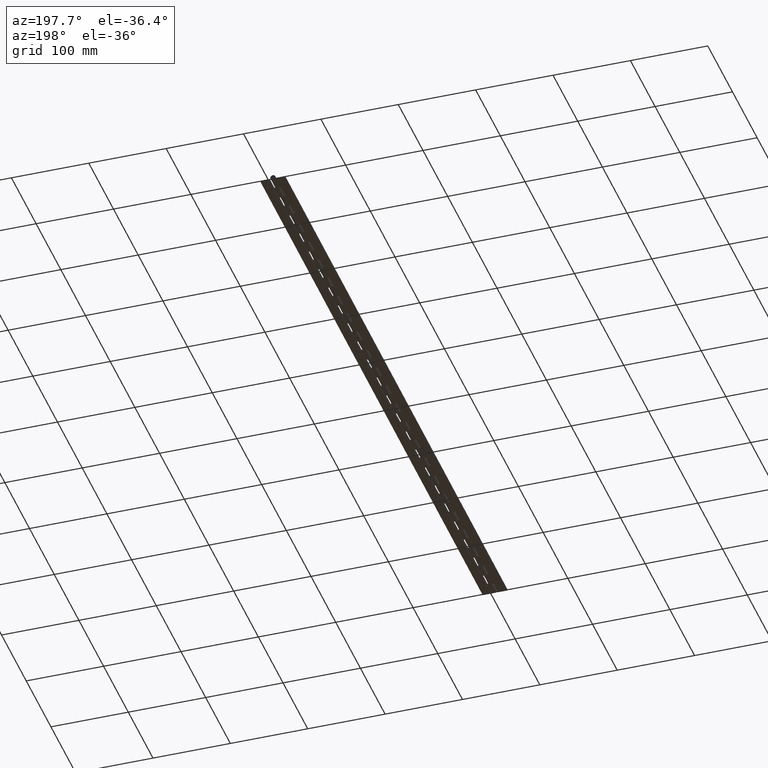
[diagram: clean part render]
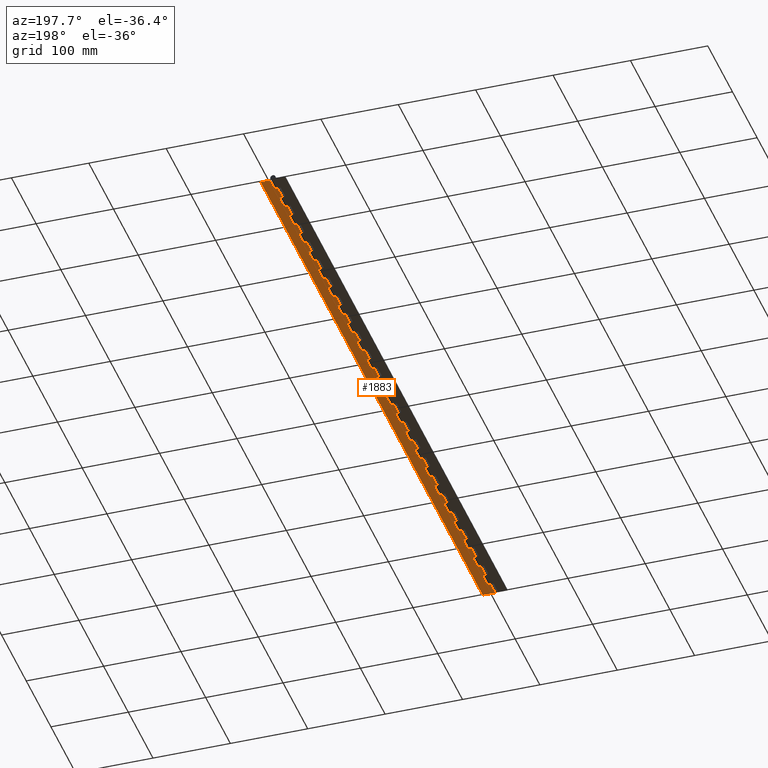
[diagram: same view with one face highlighted and labeled with its STEP entity id]
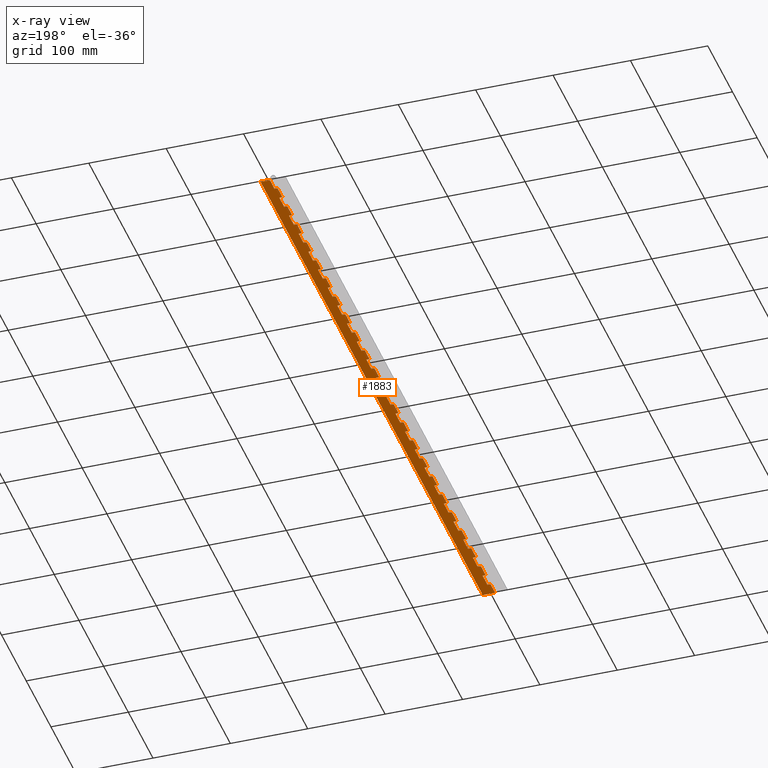
[diagram: x-ray of the same camera — body ghosted, the highlighted face saturated]
A machine part, auxiliary view. The second image highlights one B-rep face of the part: STEP entity #1883.
The next image is the same camera in x-ray: the body ghosted, the highlighted face saturated — about 0% of this face is hidden behind the body in this view.
In plain terms, the highlighted planar face has unit normal (0, 0, 1).
Its self-contained STEP definition (entity closure, byte-faithful):
#3 = VECTOR ( 'NONE', #3542, 1000.000000000000000 ) ;
#19 = CARTESIAN_POINT ( 'NONE',  ( 0.0000000000000000000, 627.2000000000000500, -3.350002187502757700 ) ) ;
#21 = CARTESIAN_POINT ( 'NONE',  ( 16.00000000000000000, 274.4000000000000900, -3.350002187502757700 ) ) ;
#24 = VECTOR ( 'NONE', #305, 1000.000000000000000 ) ;
#37 = VERTEX_POINT ( 'NONE', #8557 ) ;
#44 = LINE ( 'NONE', #910, #7578 ) ;
#53 = EDGE_CURVE ( 'NONE', #4237, #8645, #9070, .T. ) ;
#79 = VERTEX_POINT ( 'NONE', #1160 ) ;
#89 = CARTESIAN_POINT ( 'NONE',  ( -3.350002187502757700, 254.8000000000000400, -3.350002187502757700 ) ) ;
#99 = ORIENTED_EDGE ( 'NONE', *, *, #7746, .T. ) ;
#105 = VECTOR ( 'NONE', #734, 1000.000000000000000 ) ;
#110 = CARTESIAN_POINT ( 'NONE',  ( 0.0000000000000000000, 352.8000000000000700, -3.350002187502757700 ) ) ;
#154 = ORIENTED_EDGE ( 'NONE', *, *, #7662, .F. ) ;
#163 = CARTESIAN_POINT ( 'NONE',  ( 4.000000000000000000, 881.1999999999999300, -3.350002187502757700 ) ) ;
#173 = DIRECTION ( 'NONE',  ( -1.000000000000000000, -0.0000000000000000000, -0.0000000000000000000 ) ) ;
#177 = EDGE_CURVE ( 'NONE', #4525, #4315, #5928, .T. ) ;
#189 = DIRECTION ( 'NONE',  ( 1.000000000000000000, 0.0000000000000000000, -1.084202172485504600E-016 ) ) ;
#190 = ORIENTED_EDGE ( 'NONE', *, *, #8500, .T. ) ;
#198 = CARTESIAN_POINT ( 'NONE',  ( 4.000000000000000000, 803.6000000000001400, -3.350002187502757700 ) ) ;
#227 = DIRECTION ( 'NONE',  ( -0.0000000000000000000, -1.000000000000000000, -0.0000000000000000000 ) ) ;
#289 = VERTEX_POINT ( 'NONE', #8355 ) ;
#291 = DIRECTION ( 'NONE',  ( -1.000000000000000000, -0.0000000000000000000, -0.0000000000000000000 ) ) ;
#295 = CARTESIAN_POINT ( 'NONE',  ( 4.000000000000000000, 450.8000000000000700, -3.350002187502757700 ) ) ;
#296 = EDGE_CURVE ( 'NONE', #3006, #8449, #4965, .T. ) ;
#305 = DIRECTION ( 'NONE',  ( -0.0000000000000000000, -1.000000000000000000, -0.0000000000000000000 ) ) ;
#311 = DIRECTION ( 'NONE',  ( -0.0000000000000000000, -1.000000000000000000, -0.0000000000000000000 ) ) ;
#312 = ORIENTED_EDGE ( 'NONE', *, *, #1822, .F. ) ;
#327 = VECTOR ( 'NONE', #3747, 1000.000000000000000 ) ;
#339 = LINE ( 'NONE', #5263, #105 ) ;
#345 = LINE ( 'NONE', #3813, #6158 ) ;
#347 = CARTESIAN_POINT ( 'NONE',  ( 3.999999999999996400, 39.20000000000001000, -3.350002187502756400 ) ) ;
#383 = VERTEX_POINT ( 'NONE', #4080 ) ;
#387 = CARTESIAN_POINT ( 'NONE',  ( 0.0000000000000000000, 0.0000000000000000000, -3.350002187502757700 ) ) ;
#389 = DIRECTION ( 'NONE',  ( 1.000000000000000000, 0.0000000000000000000, -1.084202172485504600E-016 ) ) ;
#398 = CARTESIAN_POINT ( 'NONE',  ( 4.000000000000000000, 607.6000000000000200, -3.350002187502757700 ) ) ;
#431 = VERTEX_POINT ( 'NONE', #860 ) ;
#457 = CARTESIAN_POINT ( 'NONE',  ( 4.000000000000000000, 529.2000000000000500, -3.350002187502757700 ) ) ;
#468 = CARTESIAN_POINT ( 'NONE',  ( 4.000000000000000000, 411.6000000000000800, -3.350002187502757700 ) ) ;
#495 = CARTESIAN_POINT ( 'NONE',  ( 4.000000000000000000, 646.8000000000000700, -3.350002187502757700 ) ) ;
#504 = ORIENTED_EDGE ( 'NONE', *, *, #1496, .F. ) ;
#520 = ORIENTED_EDGE ( 'NONE', *, *, #5890, .T. ) ;
#537 = CARTESIAN_POINT ( 'NONE',  ( 0.0000000000000000000, 196.0000000000000300, -3.350002187502757700 ) ) ;
#559 = LINE ( 'NONE', #4519, #327 ) ;
#565 = ORIENTED_EDGE ( 'NONE', *, *, #2209, .T. ) ;
#566 = LINE ( 'NONE', #1879, #8332 ) ;
#569 = VECTOR ( 'NONE', #5189, 1000.000000000000000 ) ;
#596 = DIRECTION ( 'NONE',  ( 1.770125995894701000E-016, 1.000000000000000000, -0.0000000000000000000 ) ) ;
#622 = CARTESIAN_POINT ( 'NONE',  ( 4.000000000000000000, 98.00000000000001400, -3.350002187502757700 ) ) ;
#623 = CARTESIAN_POINT ( 'NONE',  ( 0.0000000000000000000, 313.6000000000000200, -3.350002187502757700 ) ) ;
#637 = EDGE_CURVE ( 'NONE', #5449, #1578, #5670, .T. ) ;
#644 = ORIENTED_EDGE ( 'NONE', *, *, #9096, .T. ) ;
#654 = CARTESIAN_POINT ( 'NONE',  ( 4.000000000000000000, 372.4000000000000900, -3.350002187502757700 ) ) ;
#659 = VERTEX_POINT ( 'NONE', #9575 ) ;
#662 = CARTESIAN_POINT ( 'NONE',  ( 16.00000000000000000, 313.5999999999999700, -3.350002187502757700 ) ) ;
#664 = CARTESIAN_POINT ( 'NONE',  ( 4.000000000000000000, 725.2000000000000500, -3.350002187502757700 ) ) ;
#667 = VECTOR ( 'NONE', #966, 1000.000000000000000 ) ;
#676 = LINE ( 'NONE', #654, #6011 ) ;
#694 = CARTESIAN_POINT ( 'NONE',  ( -3.350002187502754100, 0.0000000000000000000, -3.350002187502757700 ) ) ;
#698 = LINE ( 'NONE', #1906, #8467 ) ;
#706 = VECTOR ( 'NONE', #227, 1000.000000000000000 ) ;
#733 = VECTOR ( 'NONE', #7875, 1000.000000000000000 ) ;
#734 = DIRECTION ( 'NONE',  ( -0.0000000000000000000, -1.000000000000000000, -0.0000000000000000000 ) ) ;
#737 = VERTEX_POINT ( 'NONE', #2007 ) ;
#769 = VERTEX_POINT ( 'NONE', #4350 ) ;
#780 = ORIENTED_EDGE ( 'NONE', *, *, #1255, .F. ) ;
#792 = LINE ( 'NONE', #694, #4596 ) ;
#797 = VERTEX_POINT ( 'NONE', #6583 ) ;
#817 = DIRECTION ( 'NONE',  ( 1.000000000000000000, 0.0000000000000000000, -1.084202172485504600E-016 ) ) ;
#843 = CARTESIAN_POINT ( 'NONE',  ( 4.000000000000000000, 294.0000000000000600, -3.350002187502757700 ) ) ;
#860 = CARTESIAN_POINT ( 'NONE',  ( 0.0000000000000000000, 431.2000000000001000, -3.350002187502757700 ) ) ;
#883 = DIRECTION ( 'NONE',  ( 1.000000000000000000, 0.0000000000000000000, 0.0000000000000000000 ) ) ;
#895 = DIRECTION ( 'NONE',  ( -0.0000000000000000000, -1.000000000000000000, -0.0000000000000000000 ) ) ;
#910 = CARTESIAN_POINT ( 'NONE',  ( -3.350002187502757700, 490.0000000000000600, -3.350002187502757700 ) ) ;
#938 = LINE ( 'NONE', #9388, #8470 ) ;
#942 = DIRECTION ( 'NONE',  ( 1.770125995894701000E-016, 1.000000000000000000, -0.0000000000000000000 ) ) ;
#956 = EDGE_CURVE ( 'NONE', #7421, #797, #4966, .T. ) ;
#965 = LINE ( 'NONE', #6234, #2514 ) ;
#966 = DIRECTION ( 'NONE',  ( -1.000000000000000000, -0.0000000000000000000, -0.0000000000000000000 ) ) ;
#973 = LINE ( 'NONE', #3393, #733 ) ;
#976 = ORIENTED_EDGE ( 'NONE', *, *, #4681, .F. ) ;
#981 = CARTESIAN_POINT ( 'NONE',  ( 4.000000000000000000, 176.4000000000000300, -3.350002187502757700 ) ) ;
#986 = DIRECTION ( 'NONE',  ( 1.770125995894701000E-016, 1.000000000000000000, -0.0000000000000000000 ) ) ;
#996 = VERTEX_POINT ( 'NONE', #295 ) ;
#997 = CARTESIAN_POINT ( 'NONE',  ( 3.999999999999996400, 784.0000000000001100, -3.350002187502756400 ) ) ;
#1022 = EDGE_CURVE ( 'NONE', #7966, #383, #4029, .T. ) ;
#1029 = VECTOR ( 'NONE', #9680, 1000.000000000000000 ) ;
#1047 = LINE ( 'NONE', #5024, #6837 ) ;
#1051 = DIRECTION ( 'NONE',  ( 1.770125995894701000E-016, 1.000000000000000000, -0.0000000000000000000 ) ) ;
#1064 = VECTOR ( 'NONE', #291, 1000.000000000000000 ) ;
#1065 = EDGE_CURVE ( 'NONE', #7174, #8025, #9516, .T. ) ;
#1143 = LINE ( 'NONE', #9320, #6702 ) ;
#1160 = CARTESIAN_POINT ( 'NONE',  ( 4.000000000000000000, 646.8000000000000700, -3.350002187502757700 ) ) ;
#1171 = VECTOR ( 'NONE', #1051, 1000.000000000000000 ) ;
#1172 = CARTESIAN_POINT ( 'NONE',  ( 0.0000000000000000000, 392.0000000000000600, -3.350002187502757700 ) ) ;
#1178 = CARTESIAN_POINT ( 'NONE',  ( 4.000000000000000000, 411.6000000000000800, -3.350002187502757700 ) ) ;
#1204 = CARTESIAN_POINT ( 'NONE',  ( 4.000000000000000000, 450.8000000000000700, -3.350002187502757700 ) ) ;
#1207 = DIRECTION ( 'NONE',  ( -0.0000000000000000000, -1.000000000000000000, -0.0000000000000000000 ) ) ;
#1212 = CARTESIAN_POINT ( 'NONE',  ( 16.00000000000000000, 235.1999999999999600, -3.350002187502757700 ) ) ;
#1222 = DIRECTION ( 'NONE',  ( -0.0000000000000000000, -1.000000000000000000, -0.0000000000000000000 ) ) ;
#1224 = DIRECTION ( 'NONE',  ( -0.0000000000000000000, -1.000000000000000000, -0.0000000000000000000 ) ) ;
#1227 = VERTEX_POINT ( 'NONE', #7571 ) ;
#1243 = CARTESIAN_POINT ( 'NONE',  ( 4.000000000000000000, 686.0000000000000000, -3.350002187502757700 ) ) ;
#1252 = DIRECTION ( 'NONE',  ( 1.770125995894701000E-016, 1.000000000000000000, -0.0000000000000000000 ) ) ;
#1255 = EDGE_CURVE ( 'NONE', #5066, #3963, #3913, .T. ) ;
#1278 = VECTOR ( 'NONE', #942, 1000.000000000000000 ) ;
#1284 = LINE ( 'NONE', #1212, #7291 ) ;
#1307 = EDGE_CURVE ( 'NONE', #7729, #659, #3664, .T. ) ;
#1358 = CARTESIAN_POINT ( 'NONE',  ( 4.000000000000000000, 19.60000000000000100, -3.350002187502757700 ) ) ;
#1359 = CARTESIAN_POINT ( 'NONE',  ( 0.0000000000000000000, 862.3999999999999800, -3.350002187502755900 ) ) ;
#1364 = CARTESIAN_POINT ( 'NONE',  ( 0.0000000000000000000, -18.80000000000000100, -3.350002187502755900 ) ) ;
#1373 = LINE ( 'NONE', #8177, #8893 ) ;
#1377 = CARTESIAN_POINT ( 'NONE',  ( 16.00000000000000000, 431.2000000000001000, -3.350002187502757700 ) ) ;
#1383 = CARTESIAN_POINT ( 'NONE',  ( 4.000000000000000000, 764.4000000000000900, -3.350002187502757700 ) ) ;
#1395 = VECTOR ( 'NONE', #3092, 1000.000000000000000 ) ;
#1397 = VECTOR ( 'NONE', #8245, 1000.000000000000000 ) ;
#1419 = VERTEX_POINT ( 'NONE', #2822 ) ;
#1420 = ORIENTED_EDGE ( 'NONE', *, *, #5347, .T. ) ;
#1431 = DIRECTION ( 'NONE',  ( -0.0000000000000000000, -1.000000000000000000, -0.0000000000000000000 ) ) ;
#1436 = ORIENTED_EDGE ( 'NONE', *, *, #3973, .T. ) ;
#1438 = CARTESIAN_POINT ( 'NONE',  ( 0.0000000000000000000, 862.3999999999999800, -3.350002187502755900 ) ) ;
#1455 = CARTESIAN_POINT ( 'NONE',  ( 0.0000000000000000000, 862.3999999999999800, -3.350002187502755900 ) ) ;
#1456 = CARTESIAN_POINT ( 'NONE',  ( 16.00000000000000000, 862.3999999999999800, -3.350002187502757700 ) ) ;
#1490 = ORIENTED_EDGE ( 'NONE', *, *, #9026, .F. ) ;
#1496 = EDGE_CURVE ( 'NONE', #3133, #3378, #3781, .T. ) ;
#1516 = VECTOR ( 'NONE', #9566, 1000.000000000000000 ) ;
#1521 = ORIENTED_EDGE ( 'NONE', *, *, #3401, .F. ) ;
#1543 = EDGE_CURVE ( 'NONE', #7466, #289, #7295, .T. ) ;
#1547 = VECTOR ( 'NONE', #3873, 1000.000000000000000 ) ;
#1548 = DIRECTION ( 'NONE',  ( 1.000000000000000000, 0.0000000000000000000, -1.084202172485504600E-016 ) ) ;
#1558 = VERTEX_POINT ( 'NONE', #4156 ) ;
#1566 = VERTEX_POINT ( 'NONE', #387 ) ;
#1575 = CARTESIAN_POINT ( 'NONE',  ( 0.0000000000000000000, 862.3999999999999800, -3.350002187502755900 ) ) ;
#1578 = VERTEX_POINT ( 'NONE', #347 ) ;
#1592 = EDGE_CURVE ( 'NONE', #9451, #2059, #9046, .T. ) ;
#1609 = CARTESIAN_POINT ( 'NONE',  ( 0.0000000000000000000, 235.2000000000000200, -3.350002187502757700 ) ) ;
#1634 = LINE ( 'NONE', #6874, #9364 ) ;
#1638 = ORIENTED_EDGE ( 'NONE', *, *, #8514, .T. ) ;
#1643 = EDGE_CURVE ( 'NONE', #9040, #8711, #6376, .T. ) ;
#1645 = LINE ( 'NONE', #1575, #7639 ) ;
#1675 = VERTEX_POINT ( 'NONE', #981 ) ;
#1680 = LINE ( 'NONE', #8756, #1900 ) ;
#1689 = VECTOR ( 'NONE', #3040, 1000.000000000000000 ) ;
#1692 = DIRECTION ( 'NONE',  ( 1.000000000000000000, 0.0000000000000000000, -1.084202172485504600E-016 ) ) ;
#1698 = VERTEX_POINT ( 'NONE', #8435 ) ;
#1705 = EDGE_CURVE ( 'NONE', #7807, #2326, #7869, .T. ) ;
#1722 = ORIENTED_EDGE ( 'NONE', *, *, #3202, .T. ) ;
#1724 = CARTESIAN_POINT ( 'NONE',  ( -3.350002187502757700, 176.4000000000000300, -3.350002187502757700 ) ) ;
#1731 = VERTEX_POINT ( 'NONE', #5407 ) ;
#1747 = LINE ( 'NONE', #2253, #1987 ) ;
#1750 = EDGE_CURVE ( 'NONE', #2521, #3223, #3423, .T. ) ;
#1759 = CARTESIAN_POINT ( 'NONE',  ( 0.0000000000000000000, 646.8000000000000700, -3.350002187502757700 ) ) ;
#1773 = DIRECTION ( 'NONE',  ( 1.770125995894701000E-016, 1.000000000000000000, -0.0000000000000000000 ) ) ;
#1786 = ORIENTED_EDGE ( 'NONE', *, *, #4690, .T. ) ;
#1790 = VECTOR ( 'NONE', #5520, 1000.000000000000000 ) ;
#1806 = CARTESIAN_POINT ( 'NONE',  ( 0.0000000000000000000, 862.3999999999999800, -3.350002187502755900 ) ) ;
#1812 = DIRECTION ( 'NONE',  ( -1.000000000000000000, -0.0000000000000000000, -0.0000000000000000000 ) ) ;
#1822 = EDGE_CURVE ( 'NONE', #7729, #2522, #8919, .T. ) ;
#1831 = CARTESIAN_POINT ( 'NONE',  ( -3.350002187502757700, 58.80000000000000400, -3.350002187502757700 ) ) ;
#1845 = ORIENTED_EDGE ( 'NONE', *, *, #9195, .T. ) ;
#1864 = LINE ( 'NONE', #457, #5654 ) ;
#1865 = VERTEX_POINT ( 'NONE', #6720 ) ;
#1873 = VECTOR ( 'NONE', #2442, 1000.000000000000000 ) ;
#1879 = CARTESIAN_POINT ( 'NONE',  ( -6.153854184092820600E-016, -18.80000000000000100, -3.350002187502755900 ) ) ;
#1883 = ADVANCED_FACE ( 'NONE', ( #2237 ), #4725, .F. ) ;
#1886 = CARTESIAN_POINT ( 'NONE',  ( 16.00000000000000000, 548.8000000000000700, -3.350002187502757700 ) ) ;
#1887 = VECTOR ( 'NONE', #9582, 1000.000000000000000 ) ;
#1894 = ORIENTED_EDGE ( 'NONE', *, *, #3138, .F. ) ;
#1900 = VECTOR ( 'NONE', #3521, 1000.000000000000000 ) ;
#1906 = CARTESIAN_POINT ( 'NONE',  ( 16.00000000000000000, 196.0000000000000600, -3.350002187502757700 ) ) ;
#1908 = DIRECTION ( 'NONE',  ( 1.770125995894701000E-016, 1.000000000000000000, -0.0000000000000000000 ) ) ;
#1924 = LINE ( 'NONE', #2546, #3470 ) ;
#1947 = ORIENTED_EDGE ( 'NONE', *, *, #4403, .T. ) ;
#1987 = VECTOR ( 'NONE', #6768, 1000.000000000000000 ) ;
#1988 = EDGE_CURVE ( 'NONE', #769, #2870, #5293, .T. ) ;
#2005 = CARTESIAN_POINT ( 'NONE',  ( 0.0000000000000000000, 529.2000000000000500, -3.350002187502757700 ) ) ;
#2007 = CARTESIAN_POINT ( 'NONE',  ( 0.0000000000000000000, 548.8000000000000700, -3.350002187502757700 ) ) ;
#2031 = VERTEX_POINT ( 'NONE', #2882 ) ;
#2033 = LINE ( 'NONE', #9235, #1790 ) ;
#2035 = EDGE_CURVE ( 'NONE', #2031, #1698, #5823, .T. ) ;
#2051 = VECTOR ( 'NONE', #3907, 1000.000000000000000 ) ;
#2059 = VERTEX_POINT ( 'NONE', #1383 ) ;
#2078 = VERTEX_POINT ( 'NONE', #6693 ) ;
#2080 = CARTESIAN_POINT ( 'NONE',  ( 0.0000000000000000000, 862.3999999999999800, -3.350002187502755900 ) ) ;
#2103 = VECTOR ( 'NONE', #3054, 1000.000000000000000 ) ;
#2112 = VECTOR ( 'NONE', #1222, 1000.000000000000000 ) ;
#2137 = ORIENTED_EDGE ( 'NONE', *, *, #5722, .T. ) ;
#2148 = LINE ( 'NONE', #3471, #5931 ) ;
#2152 = ORIENTED_EDGE ( 'NONE', *, *, #1022, .T. ) ;
#2190 = DIRECTION ( 'NONE',  ( -0.0000000000000000000, -1.000000000000000000, -0.0000000000000000000 ) ) ;
#2206 = CARTESIAN_POINT ( 'NONE',  ( 16.00000000000000000, 352.8000000000001300, -3.350002187502757700 ) ) ;
#2209 = EDGE_CURVE ( 'NONE', #37, #1865, #4552, .T. ) ;
#2218 = CARTESIAN_POINT ( 'NONE',  ( -3.350002187502757700, 725.2000000000000500, -3.350002187502757700 ) ) ;
#2237 = FACE_OUTER_BOUND ( 'NONE', #3194, .T. ) ;
#2241 = EDGE_CURVE ( 'NONE', #9449, #5678, #4067, .T. ) ;
#2246 = CARTESIAN_POINT ( 'NONE',  ( 4.000000000000000000, 881.1999999999999300, -3.350002187502757700 ) ) ;
#2251 = VECTOR ( 'NONE', #7105, 1000.000000000000000 ) ;
#2253 = CARTESIAN_POINT ( 'NONE',  ( -3.350002187502757700, 450.8000000000000700, -3.350002187502757700 ) ) ;
#2254 = VECTOR ( 'NONE', #1224, 1000.000000000000000 ) ;
#2265 = EDGE_CURVE ( 'NONE', #7421, #7689, #5839, .T. ) ;
#2285 = VECTOR ( 'NONE', #9442, 1000.000000000000000 ) ;
#2289 = EDGE_CURVE ( 'NONE', #6411, #3378, #44, .T. ) ;
#2295 = ORIENTED_EDGE ( 'NONE', *, *, #8162, .T. ) ;
#2302 = CARTESIAN_POINT ( 'NONE',  ( 16.00000000000000000, 744.8000000000001800, -3.350002187502757700 ) ) ;
#2326 = VERTEX_POINT ( 'NONE', #9240 ) ;
#2351 = CARTESIAN_POINT ( 'NONE',  ( 16.00000000000000000, 156.8000000000000400, -3.350002187502757700 ) ) ;
#2360 = VECTOR ( 'NONE', #5974, 1000.000000000000000 ) ;
#2365 = VECTOR ( 'NONE', #1773, 1000.000000000000000 ) ;
#2368 = VECTOR ( 'NONE', #7213, 1000.000000000000000 ) ;
#2420 = CARTESIAN_POINT ( 'NONE',  ( 4.000000000000000000, 333.2000000000000500, -3.350002187502757700 ) ) ;
#2428 = ORIENTED_EDGE ( 'NONE', *, *, #637, .T. ) ;
#2442 = DIRECTION ( 'NONE',  ( -0.0000000000000000000, -1.000000000000000000, -0.0000000000000000000 ) ) ;
#2463 = VECTOR ( 'NONE', #2600, 1000.000000000000000 ) ;
#2474 = ORIENTED_EDGE ( 'NONE', *, *, #7078, .T. ) ;
#2485 = VECTOR ( 'NONE', #986, 1000.000000000000000 ) ;
#2486 = DIRECTION ( 'NONE',  ( -1.000000000000000000, -0.0000000000000000000, -0.0000000000000000000 ) ) ;
#2501 = VERTEX_POINT ( 'NONE', #5724 ) ;
#2504 = ORIENTED_EDGE ( 'NONE', *, *, #2241, .T. ) ;
#2514 = VECTOR ( 'NONE', #8426, 1000.000000000000000 ) ;
#2521 = VERTEX_POINT ( 'NONE', #1172 ) ;
#2522 = VERTEX_POINT ( 'NONE', #7208 ) ;
#2545 = ORIENTED_EDGE ( 'NONE', *, *, #3409, .T. ) ;
#2546 = CARTESIAN_POINT ( 'NONE',  ( -3.350002187502757700, 294.0000000000000600, -3.350002187502757700 ) ) ;
#2583 = CARTESIAN_POINT ( 'NONE',  ( 3.999999999999996400, 744.8000000000001800, -3.350002187502756400 ) ) ;
#2586 = CARTESIAN_POINT ( 'NONE',  ( 3.999999999999996400, 313.5999999999999700, -3.350002187502756400 ) ) ;
#2592 = LINE ( 'NONE', #1438, #2360 ) ;
#2600 = DIRECTION ( 'NONE',  ( -0.0000000000000000000, -1.000000000000000000, -0.0000000000000000000 ) ) ;
#2603 = CARTESIAN_POINT ( 'NONE',  ( 4.000000000000000000, 764.4000000000000900, -3.350002187502757700 ) ) ;
#2638 = DIRECTION ( 'NONE',  ( 1.000000000000000000, 0.0000000000000000000, -1.084202172485504600E-016 ) ) ;
#2662 = CARTESIAN_POINT ( 'NONE',  ( 0.0000000000000000000, 588.0000000000001100, -3.350002187502757700 ) ) ;
#2669 = ORIENTED_EDGE ( 'NONE', *, *, #3315, .T. ) ;
#2674 = DIRECTION ( 'NONE',  ( -1.000000000000000000, 0.0000000000000000000, 1.084202172485504400E-016 ) ) ;
#2688 = DIRECTION ( 'NONE',  ( 1.770125995894701000E-016, 1.000000000000000000, -0.0000000000000000000 ) ) ;
#2689 = LINE ( 'NONE', #7840, #2463 ) ;
#2707 = VECTOR ( 'NONE', #2486, 1000.000000000000000 ) ;
#2755 = ORIENTED_EDGE ( 'NONE', *, *, #9130, .T. ) ;
#2771 = ORIENTED_EDGE ( 'NONE', *, *, #3840, .F. ) ;
#2822 = CARTESIAN_POINT ( 'NONE',  ( 0.0000000000000000000, 686.0000000000000000, -3.350002187502757700 ) ) ;
#2870 = VERTEX_POINT ( 'NONE', #622 ) ;
#2882 = CARTESIAN_POINT ( 'NONE',  ( 3.999999999999996400, 0.0000000000000000000, -3.350002187502757700 ) ) ;
#2918 = LINE ( 'NONE', #2218, #4706 ) ;
#2977 = EDGE_CURVE ( 'NONE', #737, #3369, #5473, .T. ) ;
#2992 = ORIENTED_EDGE ( 'NONE', *, *, #956, .F. ) ;
#3006 = VERTEX_POINT ( 'NONE', #5307 ) ;
#3018 = ORIENTED_EDGE ( 'NONE', *, *, #9217, .T. ) ;
#3040 = DIRECTION ( 'NONE',  ( -0.0000000000000000000, -1.000000000000000000, -0.0000000000000000000 ) ) ;
#3054 = DIRECTION ( 'NONE',  ( 1.000000000000000000, 0.0000000000000000000, -1.084202172485504600E-016 ) ) ;
#3088 = DIRECTION ( 'NONE',  ( -1.000000000000000000, -0.0000000000000000000, -0.0000000000000000000 ) ) ;
#3089 = ORIENTED_EDGE ( 'NONE', *, *, #177, .T. ) ;
#3092 = DIRECTION ( 'NONE',  ( 1.000000000000000000, 0.0000000000000000000, -1.084202172485504600E-016 ) ) ;
#3098 = VECTOR ( 'NONE', #1812, 1000.000000000000000 ) ;
#3099 = LINE ( 'NONE', #1886, #4866 ) ;
#3105 = CARTESIAN_POINT ( 'NONE',  ( 0.0000000000000000000, 470.4000000000000300, -3.350002187502757700 ) ) ;
#3112 = CARTESIAN_POINT ( 'NONE',  ( -3.350002187502757700, 842.8000000000000700, -3.350002187502757700 ) ) ;
#3133 = VERTEX_POINT ( 'NONE', #8477 ) ;
#3138 = EDGE_CURVE ( 'NONE', #6294, #8653, #2033, .T. ) ;
#3182 = LINE ( 'NONE', #1806, #4937 ) ;
#3194 = EDGE_LOOP ( 'NONE', ( #3572, #9120, #7551, #1786, #7037, #976, #2755, #5285, #5503, #8792, #2428, #2669, #8950, #8021, #644, #7088, #8821, #780, #4543, #2295, #8901, #8992, #565, #7233, #190, #8479, #1436, #5977, #7692, #1894, #6348, #8031, #3832, #4007, #6783, #4116, #4630, #1490, #6046, #2152, #1722, #9213, #1420, #3870, #9547, #9321, #5544, #2545, #3640, #4077, #6443, #4967, #7909, #6433, #3089, #4145, #6575, #504, #8033, #2474, #3018, #6363, #2137, #5989, #2504, #154, #1947, #3706, #5685, #312, #4063, #9550, #9738, #2771, #99, #6075, #7255, #4031, #8485, #9454, #5230, #7191, #1845, #7572, #3357, #1521, #520, #1638, #8618, #7030, #9517, #8119, #9236, #2992 ) ) ;
#3197 = DIRECTION ( 'NONE',  ( -1.000000000000000000, -0.0000000000000000000, -0.0000000000000000000 ) ) ;
#3202 = EDGE_CURVE ( 'NONE', #383, #2326, #5089, .T. ) ;
#3223 = VERTEX_POINT ( 'NONE', #3344 ) ;
#3267 = CARTESIAN_POINT ( 'NONE',  ( 0.0000000000000000000, 862.3999999999999800, -3.350002187502755900 ) ) ;
#3272 = VERTEX_POINT ( 'NONE', #6364 ) ;
#3310 = VECTOR ( 'NONE', #5668, 1000.000000000000000 ) ;
#3315 = EDGE_CURVE ( 'NONE', #1578, #4181, #8126, .T. ) ;
#3329 = VERTEX_POINT ( 'NONE', #7946 ) ;
#3344 = CARTESIAN_POINT ( 'NONE',  ( 3.999999999999996400, 392.0000000000000600, -3.350002187502756400 ) ) ;
#3356 = EDGE_CURVE ( 'NONE', #4315, #6411, #2148, .T. ) ;
#3357 = ORIENTED_EDGE ( 'NONE', *, *, #4241, .T. ) ;
#3369 = VERTEX_POINT ( 'NONE', #2005 ) ;
#3378 = VERTEX_POINT ( 'NONE', #7264 ) ;
#3393 = CARTESIAN_POINT ( 'NONE',  ( -3.350002187502757700, 646.8000000000000700, -3.350002187502757700 ) ) ;
#3401 = EDGE_CURVE ( 'NONE', #4757, #5512, #1680, .T. ) ;
#3409 = EDGE_CURVE ( 'NONE', #3223, #8946, #5462, .T. ) ;
#3414 = CARTESIAN_POINT ( 'NONE',  ( 4.000000000000000000, 254.8000000000000400, -3.350002187502757700 ) ) ;
#3423 = LINE ( 'NONE', #6888, #1397 ) ;
#3439 = VECTOR ( 'NONE', #895, 1000.000000000000000 ) ;
#3470 = VECTOR ( 'NONE', #3989, 1000.000000000000000 ) ;
#3471 = CARTESIAN_POINT ( 'NONE',  ( 4.000000000000000000, 490.0000000000000600, -3.350002187502757700 ) ) ;
#3475 = EDGE_CURVE ( 'NONE', #659, #79, #4968, .T. ) ;
#3521 = DIRECTION ( 'NONE',  ( -0.0000000000000000000, -1.000000000000000000, -0.0000000000000000000 ) ) ;
#3529 = CARTESIAN_POINT ( 'NONE',  ( -3.350002187502757700, 764.4000000000000900, -3.350002187502757700 ) ) ;
#3542 = DIRECTION ( 'NONE',  ( 1.000000000000000000, 0.0000000000000000000, -1.084202172485504600E-016 ) ) ;
#3554 = VECTOR ( 'NONE', #4700, 1000.000000000000000 ) ;
#3565 = VERTEX_POINT ( 'NONE', #4434 ) ;
#3572 = ORIENTED_EDGE ( 'NONE', *, *, #2265, .T. ) ;
#3630 = DIRECTION ( 'NONE',  ( 1.770125995894701000E-016, 1.000000000000000000, -0.0000000000000000000 ) ) ;
#3640 = ORIENTED_EDGE ( 'NONE', *, *, #6085, .T. ) ;
#3664 = LINE ( 'NONE', #9000, #9393 ) ;
#3673 = DIRECTION ( 'NONE',  ( 1.000000000000000000, 0.0000000000000000000, -1.084202172485504600E-016 ) ) ;
#3676 = LINE ( 'NONE', #8614, #1171 ) ;
#3678 = VERTEX_POINT ( 'NONE', #4572 ) ;
#3706 = ORIENTED_EDGE ( 'NONE', *, *, #7034, .T. ) ;
#3710 = EDGE_CURVE ( 'NONE', #289, #797, #4628, .T. ) ;
#3742 = EDGE_CURVE ( 'NONE', #8025, #3565, #8354, .T. ) ;
#3743 = CARTESIAN_POINT ( 'NONE',  ( 0.0000000000000000000, 862.3999999999999800, -3.350002187502755900 ) ) ;
#3747 = DIRECTION ( 'NONE',  ( -1.000000000000000000, -0.0000000000000000000, -0.0000000000000000000 ) ) ;
#3762 = LINE ( 'NONE', #6605, #1516 ) ;
#3772 = LINE ( 'NONE', #6088, #6263 ) ;
#3781 = LINE ( 'NONE', #8681, #5790 ) ;
#3795 = LINE ( 'NONE', #7607, #1547 ) ;
#3812 = LINE ( 'NONE', #4834, #24 ) ;
#3813 = CARTESIAN_POINT ( 'NONE',  ( 4.000000000000000000, 568.3999999999999800, -3.350002187502757700 ) ) ;
#3822 = VECTOR ( 'NONE', #3630, 1000.000000000000000 ) ;
#3832 = ORIENTED_EDGE ( 'NONE', *, *, #3742, .T. ) ;
#3833 = VECTOR ( 'NONE', #883, 1000.000000000000000 ) ;
#3840 = EDGE_CURVE ( 'NONE', #4404, #5601, #9636, .T. ) ;
#3858 = CARTESIAN_POINT ( 'NONE',  ( 4.000000000000000000, 803.6000000000001400, -3.350002187502757700 ) ) ;
#3870 = ORIENTED_EDGE ( 'NONE', *, *, #7231, .T. ) ;
#3873 = DIRECTION ( 'NONE',  ( -1.000000000000000000, -0.0000000000000000000, -0.0000000000000000000 ) ) ;
#3882 = LINE ( 'NONE', #7587, #8085 ) ;
#3887 = LINE ( 'NONE', #5757, #2112 ) ;
#3907 = DIRECTION ( 'NONE',  ( -1.000000000000000000, -0.0000000000000000000, -0.0000000000000000000 ) ) ;
#3913 = LINE ( 'NONE', #2080, #1887 ) ;
#3924 = VECTOR ( 'NONE', #4935, 1000.000000000000000 ) ;
#3963 = VERTEX_POINT ( 'NONE', #5669 ) ;
#3973 = EDGE_CURVE ( 'NONE', #8998, #2501, #698, .T. ) ;
#3977 = VERTEX_POINT ( 'NONE', #2662 ) ;
#3989 = DIRECTION ( 'NONE',  ( -1.000000000000000000, -0.0000000000000000000, -0.0000000000000000000 ) ) ;
#4007 = ORIENTED_EDGE ( 'NONE', *, *, #7054, .F. ) ;
#4015 = CARTESIAN_POINT ( 'NONE',  ( 4.000000000000000000, 490.0000000000000600, -3.350002187502757700 ) ) ;
#4023 = CARTESIAN_POINT ( 'NONE',  ( 4.000000000000000000, 686.0000000000000000, -3.350002187502757700 ) ) ;
#4029 = LINE ( 'NONE', #2420, #8232 ) ;
#4031 = ORIENTED_EDGE ( 'NONE', *, *, #7740, .F. ) ;
#4063 = ORIENTED_EDGE ( 'NONE', *, *, #1307, .T. ) ;
#4067 = LINE ( 'NONE', #7630, #2051 ) ;
#4077 = ORIENTED_EDGE ( 'NONE', *, *, #8094, .F. ) ;
#4080 = CARTESIAN_POINT ( 'NONE',  ( 4.000000000000000000, 333.2000000000000500, -3.350002187502757700 ) ) ;
#4104 = CARTESIAN_POINT ( 'NONE',  ( 0.0000000000000000000, 568.3999999999999800, -3.350002187502757700 ) ) ;
#4110 = LINE ( 'NONE', #2302, #2103 ) ;
#4116 = ORIENTED_EDGE ( 'NONE', *, *, #8006, .T. ) ;
#4119 = VECTOR ( 'NONE', #4921, 1000.000000000000000 ) ;
#4141 = LINE ( 'NONE', #6808, #7884 ) ;
#4145 = ORIENTED_EDGE ( 'NONE', *, *, #3356, .T. ) ;
#4146 = EDGE_CURVE ( 'NONE', #2870, #3963, #8806, .T. ) ;
#4156 = CARTESIAN_POINT ( 'NONE',  ( 0.0000000000000000000, 725.2000000000000500, -3.350002187502757700 ) ) ;
#4181 = VERTEX_POINT ( 'NONE', #6455 ) ;
#4186 = EDGE_CURVE ( 'NONE', #1698, #3329, #4371, .T. ) ;
#4225 = CARTESIAN_POINT ( 'NONE',  ( 3.999999999999996400, 352.8000000000001300, -3.350002187502756400 ) ) ;
#4237 = VERTEX_POINT ( 'NONE', #7268 ) ;
#4241 = EDGE_CURVE ( 'NONE', #2059, #5512, #6153, .T. ) ;
#4256 = LINE ( 'NONE', #7931, #2254 ) ;
#4301 = VECTOR ( 'NONE', #817, 1000.000000000000000 ) ;
#4312 = EDGE_CURVE ( 'NONE', #8711, #1419, #7175, .T. ) ;
#4315 = VERTEX_POINT ( 'NONE', #6625 ) ;
#4341 = CARTESIAN_POINT ( 'NONE',  ( 4.000000000000000000, 372.4000000000000900, -3.350002187502757700 ) ) ;
#4350 = CARTESIAN_POINT ( 'NONE',  ( 3.999999999999996400, 78.40000000000002000, -3.350002187502756400 ) ) ;
#4355 = DIRECTION ( 'NONE',  ( -1.000000000000000000, -0.0000000000000000000, -0.0000000000000000000 ) ) ;
#4371 = LINE ( 'NONE', #8654, #2368 ) ;
#4382 = VECTOR ( 'NONE', #5410, 1000.000000000000000 ) ;
#4403 = EDGE_CURVE ( 'NONE', #3977, #6559, #6475, .T. ) ;
#4404 = VERTEX_POINT ( 'NONE', #5981 ) ;
#4411 = VECTOR ( 'NONE', #9709, 1000.000000000000000 ) ;
#4434 = CARTESIAN_POINT ( 'NONE',  ( 0.0000000000000000000, 254.8000000000000400, -3.350002187502757700 ) ) ;
#4472 = EDGE_CURVE ( 'NONE', #9671, #7448, #3772, .T. ) ;
#4519 = CARTESIAN_POINT ( 'NONE',  ( -3.350002187502757700, 607.6000000000000200, -3.350002187502757700 ) ) ;
#4525 = VERTEX_POINT ( 'NONE', #3105 ) ;
#4543 = ORIENTED_EDGE ( 'NONE', *, *, #5554, .T. ) ;
#4548 = CARTESIAN_POINT ( 'NONE',  ( 3.999999999999996400, 509.6000000000000800, -3.350002187502756400 ) ) ;
#4549 = VERTEX_POINT ( 'NONE', #7619 ) ;
#4552 = LINE ( 'NONE', #2351, #4301 ) ;
#4572 = CARTESIAN_POINT ( 'NONE',  ( 0.0000000000000000000, 372.4000000000000900, -3.350002187502757700 ) ) ;
#4582 = CARTESIAN_POINT ( 'NONE',  ( 16.00000000000000000, 666.4000000000000900, -3.350002187502757700 ) ) ;
#4596 = VECTOR ( 'NONE', #5233, 1000.000000000000000 ) ;
#4628 = LINE ( 'NONE', #3112, #4855 ) ;
#4630 = ORIENTED_EDGE ( 'NONE', *, *, #5011, .T. ) ;
#4655 = VECTOR ( 'NONE', #5290, 1000.000000000000000 ) ;
#4681 = EDGE_CURVE ( 'NONE', #1566, #9080, #3182, .T. ) ;
#4687 = CARTESIAN_POINT ( 'NONE',  ( 0.0000000000000000000, 764.4000000000000900, -3.350002187502757700 ) ) ;
#4690 = EDGE_CURVE ( 'NONE', #5360, #6933, #1143, .T. ) ;
#4700 = DIRECTION ( 'NONE',  ( 1.770125995894701000E-016, 1.000000000000000000, -0.0000000000000000000 ) ) ;
#4702 = CARTESIAN_POINT ( 'NONE',  ( 0.0000000000000000000, 58.80000000000000400, -3.350002187502757700 ) ) ;
#4706 = VECTOR ( 'NONE', #6727, 1000.000000000000000 ) ;
#4719 = EDGE_CURVE ( 'NONE', #2521, #3678, #2689, .T. ) ;
#4724 = CARTESIAN_POINT ( 'NONE',  ( 16.00000000000000000, 509.6000000000000800, -3.350002187502757700 ) ) ;
#4725 = PLANE ( 'NONE',  #9251 ) ;
#4757 = VERTEX_POINT ( 'NONE', #5633 ) ;
#4779 = VERTEX_POINT ( 'NONE', #2246 ) ;
#4797 = CARTESIAN_POINT ( 'NONE',  ( -3.350002187502757700, 333.2000000000000500, -3.350002187502757700 ) ) ;
#4834 = CARTESIAN_POINT ( 'NONE',  ( 0.0000000000000000000, 862.3999999999999800, -3.350002187502755900 ) ) ;
#4847 = DIRECTION ( 'NONE',  ( 1.770125995894701000E-016, 1.000000000000000000, -0.0000000000000000000 ) ) ;
#4855 = VECTOR ( 'NONE', #6852, 1000.000000000000000 ) ;
#4865 = VECTOR ( 'NONE', #1908, 1000.000000000000000 ) ;
#4866 = VECTOR ( 'NONE', #4903, 1000.000000000000000 ) ;
#4889 = CARTESIAN_POINT ( 'NONE',  ( 0.0000000000000000000, 862.3999999999999800, -3.350002187502755900 ) ) ;
#4890 = VERTEX_POINT ( 'NONE', #843 ) ;
#4903 = DIRECTION ( 'NONE',  ( 1.000000000000000000, 0.0000000000000000000, -1.084202172485504600E-016 ) ) ;
#4909 = CARTESIAN_POINT ( 'NONE',  ( 4.000000000000000000, 842.8000000000000700, -3.350002187502757700 ) ) ;
#4914 = EDGE_CURVE ( 'NONE', #7689, #4779, #8550, .T. ) ;
#4921 = DIRECTION ( 'NONE',  ( 1.770125995894701000E-016, 1.000000000000000000, -0.0000000000000000000 ) ) ;
#4931 = EDGE_CURVE ( 'NONE', #3133, #7320, #8324, .T. ) ;
#4935 = DIRECTION ( 'NONE',  ( 1.000000000000000000, 0.0000000000000000000, -1.084202172485504600E-016 ) ) ;
#4937 = VECTOR ( 'NONE', #5580, 1000.000000000000000 ) ;
#4953 = LINE ( 'NONE', #1724, #2707 ) ;
#4954 = CARTESIAN_POINT ( 'NONE',  ( 0.0000000000000000000, 744.8000000000001800, -3.350002187502757700 ) ) ;
#4965 = LINE ( 'NONE', #3743, #6733 ) ;
#4966 = LINE ( 'NONE', #4889, #706 ) ;
#4967 = ORIENTED_EDGE ( 'NONE', *, *, #5147, .T. ) ;
#4968 = LINE ( 'NONE', #495, #6739 ) ;
#4982 = LINE ( 'NONE', #6207, #6751 ) ;
#5011 = EDGE_CURVE ( 'NONE', #4890, #6660, #1924, .T. ) ;
#5015 = DIRECTION ( 'NONE',  ( -1.000000000000000000, -0.0000000000000000000, -0.0000000000000000000 ) ) ;
#5024 = CARTESIAN_POINT ( 'NONE',  ( 4.000000000000000000, 215.6000000000000500, -3.350002187502757700 ) ) ;
#5027 = VERTEX_POINT ( 'NONE', #7073 ) ;
#5050 = LINE ( 'NONE', #5934, #1029 ) ;
#5066 = VERTEX_POINT ( 'NONE', #8590 ) ;
#5083 = CARTESIAN_POINT ( 'NONE',  ( 4.000000000000000000, 137.2000000000000200, -3.350002187502757700 ) ) ;
#5089 = LINE ( 'NONE', #4797, #3098 ) ;
#5108 = EDGE_CURVE ( 'NONE', #79, #5601, #973, .T. ) ;
#5110 = CARTESIAN_POINT ( 'NONE',  ( -3.350002187502757700, 686.0000000000000000, -3.350002187502757700 ) ) ;
#5121 = CARTESIAN_POINT ( 'NONE',  ( 4.000000000000000000, 176.4000000000000300, -3.350002187502757700 ) ) ;
#5147 = EDGE_CURVE ( 'NONE', #3272, #996, #6996, .T. ) ;
#5174 = DIRECTION ( 'NONE',  ( 1.770125995894701000E-016, 1.000000000000000000, -0.0000000000000000000 ) ) ;
#5180 = VECTOR ( 'NONE', #4355, 1000.000000000000000 ) ;
#5189 = DIRECTION ( 'NONE',  ( 1.000000000000000000, 0.0000000000000000000, -1.084202172485504600E-016 ) ) ;
#5206 = VECTOR ( 'NONE', #6641, 1000.000000000000000 ) ;
#5207 = DIRECTION ( 'NONE',  ( 1.000000000000000000, 0.0000000000000000000, -1.084202172485504600E-016 ) ) ;
#5230 = ORIENTED_EDGE ( 'NONE', *, *, #9734, .T. ) ;
#5233 = DIRECTION ( 'NONE',  ( 1.000000000000000000, 0.0000000000000000000, 0.0000000000000000000 ) ) ;
#5252 = VERTEX_POINT ( 'NONE', #4341 ) ;
#5263 = CARTESIAN_POINT ( 'NONE',  ( 0.0000000000000000000, 862.3999999999999800, -3.350002187502755900 ) ) ;
#5277 = CARTESIAN_POINT ( 'NONE',  ( 3.999999999999996400, 274.4000000000000900, -3.350002187502756400 ) ) ;
#5285 = ORIENTED_EDGE ( 'NONE', *, *, #2035, .T. ) ;
#5290 = DIRECTION ( 'NONE',  ( 1.000000000000000000, 0.0000000000000000000, -1.084202172485504600E-016 ) ) ;
#5293 = LINE ( 'NONE', #6094, #1278 ) ;
#5307 = CARTESIAN_POINT ( 'NONE',  ( 0.0000000000000000000, 78.40000000000000600, -3.350002187502757700 ) ) ;
#5327 = VERTEX_POINT ( 'NONE', #664 ) ;
#5347 = EDGE_CURVE ( 'NONE', #7807, #8091, #6638, .T. ) ;
#5360 = VERTEX_POINT ( 'NONE', #5998 ) ;
#5390 = EDGE_CURVE ( 'NONE', #8527, #8314, #7907, .T. ) ;
#5401 = LINE ( 'NONE', #1377, #9137 ) ;
#5407 = CARTESIAN_POINT ( 'NONE',  ( 4.000000000000000000, 215.6000000000000500, -3.350002187502757700 ) ) ;
#5410 = DIRECTION ( 'NONE',  ( -1.000000000000000000, -0.0000000000000000000, -0.0000000000000000000 ) ) ;
#5422 = LINE ( 'NONE', #6541, #7398 ) ;
#5438 = CARTESIAN_POINT ( 'NONE',  ( 0.0000000000000000000, 862.3999999999999800, -3.350002187502755900 ) ) ;
#5448 = DIRECTION ( 'NONE',  ( -0.0000000000000000000, 1.000000000000000000, -0.0000000000000000000 ) ) ;
#5449 = VERTEX_POINT ( 'NONE', #6839 ) ;
#5462 = LINE ( 'NONE', #1178, #7434 ) ;
#5463 = VECTOR ( 'NONE', #596, 1000.000000000000000 ) ;
#5469 = VERTEX_POINT ( 'NONE', #3858 ) ;
#5473 = LINE ( 'NONE', #7533, #1689 ) ;
#5503 = ORIENTED_EDGE ( 'NONE', *, *, #4186, .T. ) ;
#5512 = VERTEX_POINT ( 'NONE', #4687 ) ;
#5520 = DIRECTION ( 'NONE',  ( -0.0000000000000000000, -1.000000000000000000, -0.0000000000000000000 ) ) ;
#5526 = EDGE_CURVE ( 'NONE', #5469, #4549, #4982, .T. ) ;
#5544 = ORIENTED_EDGE ( 'NONE', *, *, #1750, .T. ) ;
#5554 = EDGE_CURVE ( 'NONE', #5066, #7954, #965, .T. ) ;
#5580 = DIRECTION ( 'NONE',  ( -0.0000000000000000000, -1.000000000000000000, -0.0000000000000000000 ) ) ;
#5601 = VERTEX_POINT ( 'NONE', #1759 ) ;
#5606 = VERTEX_POINT ( 'NONE', #997 ) ;
#5632 = EDGE_CURVE ( 'NONE', #5449, #3329, #3812, .T. ) ;
#5633 = CARTESIAN_POINT ( 'NONE',  ( 0.0000000000000000000, 784.0000000000001100, -3.350002187502757700 ) ) ;
#5654 = VECTOR ( 'NONE', #7247, 1000.000000000000000 ) ;
#5664 = VECTOR ( 'NONE', #5015, 1000.000000000000000 ) ;
#5668 = DIRECTION ( 'NONE',  ( 1.770125995894701000E-016, 1.000000000000000000, -0.0000000000000000000 ) ) ;
#5670 = LINE ( 'NONE', #6118, #7416 ) ;
#5669 = CARTESIAN_POINT ( 'NONE',  ( 0.0000000000000000000, 98.00000000000001400, -3.350002187502757700 ) ) ;
#5676 = VECTOR ( 'NONE', #6279, 1000.000000000000000 ) ;
#5678 = VERTEX_POINT ( 'NONE', #4104 ) ;
#5685 = ORIENTED_EDGE ( 'NONE', *, *, #9157, .T. ) ;
#5693 = DIRECTION ( 'NONE',  ( 1.000000000000000000, 0.0000000000000000000, -1.084202172485504400E-016 ) ) ;
#5722 = EDGE_CURVE ( 'NONE', #737, #5027, #3099, .T. ) ;
#5724 = CARTESIAN_POINT ( 'NONE',  ( 3.999999999999996400, 196.0000000000000600, -3.350002187502756400 ) ) ;
#5751 = DIRECTION ( 'NONE',  ( 1.000000000000000000, 0.0000000000000000000, -1.084202172485504600E-016 ) ) ;
#5757 = CARTESIAN_POINT ( 'NONE',  ( 0.0000000000000000000, 862.3999999999999800, -3.350002187502755900 ) ) ;
#5790 = VECTOR ( 'NONE', #1207, 1000.000000000000000 ) ;
#5823 = LINE ( 'NONE', #1358, #3822 ) ;
#5839 = LINE ( 'NONE', #6198, #3833 ) ;
#5877 = EDGE_CURVE ( 'NONE', #1865, #1675, #7435, .T. ) ;
#5890 = EDGE_CURVE ( 'NONE', #4757, #5606, #7197, .T. ) ;
#5913 = EDGE_CURVE ( 'NONE', #9171, #4549, #8953, .T. ) ;
#5928 = LINE ( 'NONE', #9574, #3924 ) ;
#5931 = VECTOR ( 'NONE', #2688, 1000.000000000000000 ) ;
#5934 = CARTESIAN_POINT ( 'NONE',  ( 16.00000000000000000, 78.40000000000002000, -3.350002187502757700 ) ) ;
#5974 = DIRECTION ( 'NONE',  ( -0.0000000000000000000, -1.000000000000000000, -0.0000000000000000000 ) ) ;
#5977 = ORIENTED_EDGE ( 'NONE', *, *, #6613, .T. ) ;
#5981 = CARTESIAN_POINT ( 'NONE',  ( 0.0000000000000000000, 666.4000000000000900, -3.350002187502757700 ) ) ;
#5989 = ORIENTED_EDGE ( 'NONE', *, *, #8327, .T. ) ;
#5998 = CARTESIAN_POINT ( 'NONE',  ( 16.00000000000000000, 881.1999999999999300, -3.350002187502757700 ) ) ;
#6011 = VECTOR ( 'NONE', #5174, 1000.000000000000000 ) ;
#6038 = LINE ( 'NONE', #1831, #2251 ) ;
#6041 = LINE ( 'NONE', #8770, #3 ) ;
#6046 = ORIENTED_EDGE ( 'NONE', *, *, #7647, .T. ) ;
#6075 = ORIENTED_EDGE ( 'NONE', *, *, #1643, .T. ) ;
#6085 = EDGE_CURVE ( 'NONE', #8946, #8988, #3795, .T. ) ;
#6088 = CARTESIAN_POINT ( 'NONE',  ( 16.00000000000000000, 705.6000000000001400, -3.350002187502757700 ) ) ;
#6094 = CARTESIAN_POINT ( 'NONE',  ( 4.000000000000000000, 98.00000000000001400, -3.350002187502757700 ) ) ;
#6118 = CARTESIAN_POINT ( 'NONE',  ( 16.00000000000000000, 39.20000000000001000, -3.350002187502757700 ) ) ;
#6129 = DIRECTION ( 'NONE',  ( -1.000000000000000000, -0.0000000000000000000, -0.0000000000000000000 ) ) ;
#6153 = LINE ( 'NONE', #3529, #5664 ) ;
#6158 = VECTOR ( 'NONE', #7540, 1000.000000000000000 ) ;
#6198 = CARTESIAN_POINT ( 'NONE',  ( -3.350002187502755900, 862.4000000000000900, -3.350002187502757700 ) ) ;
#6207 = CARTESIAN_POINT ( 'NONE',  ( -3.350002187502757700, 803.6000000000001400, -3.350002187502757700 ) ) ;
#6222 = CARTESIAN_POINT ( 'NONE',  ( 4.000000000000000000, 254.8000000000000400, -3.350002187502757700 ) ) ;
#6234 = CARTESIAN_POINT ( 'NONE',  ( 16.00000000000000000, 117.6000000000000400, -3.350002187502757700 ) ) ;
#6242 = DIRECTION ( 'NONE',  ( 1.084202172485504600E-016, -0.0000000000000000000, 1.000000000000000000 ) ) ;
#6247 = EDGE_CURVE ( 'NONE', #37, #8645, #4141, .T. ) ;
#6258 = CARTESIAN_POINT ( 'NONE',  ( -3.350002187502757700, 372.4000000000000900, -3.350002187502757700 ) ) ;
#6263 = VECTOR ( 'NONE', #1548, 1000.000000000000000 ) ;
#6279 = DIRECTION ( 'NONE',  ( -0.0000000000000000000, -1.000000000000000000, -0.0000000000000000000 ) ) ;
#6294 = VERTEX_POINT ( 'NONE', #1609 ) ;
#6296 = VERTEX_POINT ( 'NONE', #6881 ) ;
#6331 = EDGE_CURVE ( 'NONE', #4525, #2078, #7424, .T. ) ;
#6348 = ORIENTED_EDGE ( 'NONE', *, *, #8667, .T. ) ;
#6363 = ORIENTED_EDGE ( 'NONE', *, *, #2977, .F. ) ;
#6364 = CARTESIAN_POINT ( 'NONE',  ( 3.999999999999996400, 431.2000000000001000, -3.350002187502756400 ) ) ;
#6376 = LINE ( 'NONE', #4023, #2365 ) ;
#6411 = VERTEX_POINT ( 'NONE', #4015 ) ;
#6433 = ORIENTED_EDGE ( 'NONE', *, *, #6331, .F. ) ;
#6443 = ORIENTED_EDGE ( 'NONE', *, *, #9695, .T. ) ;
#6450 = CARTESIAN_POINT ( 'NONE',  ( 4.000000000000000000, 58.80000000000000400, -3.350002187502757700 ) ) ;
#6455 = CARTESIAN_POINT ( 'NONE',  ( 4.000000000000000000, 58.80000000000000400, -3.350002187502757700 ) ) ;
#6457 = EDGE_CURVE ( 'NONE', #4181, #8449, #6038, .T. ) ;
#6458 = DIRECTION ( 'NONE',  ( 1.770125995894701000E-016, 1.000000000000000000, -0.0000000000000000000 ) ) ;
#6475 = LINE ( 'NONE', #8168, #8457 ) ;
#6478 = LINE ( 'NONE', #198, #2485 ) ;
#6541 = CARTESIAN_POINT ( 'NONE',  ( 4.000000000000000000, 725.2000000000000500, -3.350002187502757700 ) ) ;
#6559 = VERTEX_POINT ( 'NONE', #7189 ) ;
#6575 = ORIENTED_EDGE ( 'NONE', *, *, #2289, .T. ) ;
#6581 = VECTOR ( 'NONE', #189, 1000.000000000000000 ) ;
#6583 = CARTESIAN_POINT ( 'NONE',  ( 0.0000000000000000000, 842.8000000000000700, -3.350002187502757700 ) ) ;
#6591 = VERTEX_POINT ( 'NONE', #7254 ) ;
#6605 = CARTESIAN_POINT ( 'NONE',  ( 0.0000000000000000000, 862.3999999999999800, -3.350002187502755900 ) ) ;
#6613 = EDGE_CURVE ( 'NONE', #2501, #1731, #1047, .T. ) ;
#6625 = CARTESIAN_POINT ( 'NONE',  ( 3.999999999999996400, 470.4000000000000300, -3.350002187502756400 ) ) ;
#6638 = LINE ( 'NONE', #2206, #4411 ) ;
#6641 = DIRECTION ( 'NONE',  ( 1.000000000000000000, 0.0000000000000000000, -1.084202172485504600E-016 ) ) ;
#6660 = VERTEX_POINT ( 'NONE', #8062 ) ;
#6693 = CARTESIAN_POINT ( 'NONE',  ( 0.0000000000000000000, 450.8000000000000700, -3.350002187502757700 ) ) ;
#6702 = VECTOR ( 'NONE', #311, 1000.000000000000000 ) ;
#6711 = VECTOR ( 'NONE', #8933, 1000.000000000000000 ) ;
#6720 = CARTESIAN_POINT ( 'NONE',  ( 3.999999999999996400, 156.8000000000000400, -3.350002187502756400 ) ) ;
#6727 = DIRECTION ( 'NONE',  ( -1.000000000000000000, -0.0000000000000000000, -0.0000000000000000000 ) ) ;
#6733 = VECTOR ( 'NONE', #1431, 1000.000000000000000 ) ;
#6739 = VECTOR ( 'NONE', #7271, 1000.000000000000000 ) ;
#6751 = VECTOR ( 'NONE', #3197, 1000.000000000000000 ) ;
#6768 = DIRECTION ( 'NONE',  ( -1.000000000000000000, -0.0000000000000000000, -0.0000000000000000000 ) ) ;
#6779 = CARTESIAN_POINT ( 'NONE',  ( 0.0000000000000000000, 823.2000000000001600, -3.350002187502757700 ) ) ;
#6783 = ORIENTED_EDGE ( 'NONE', *, *, #5390, .T. ) ;
#6808 = CARTESIAN_POINT ( 'NONE',  ( 0.0000000000000000000, 862.3999999999999800, -3.350002187502755900 ) ) ;
#6814 = VECTOR ( 'NONE', #5448, 1000.000000000000000 ) ;
#6833 = VECTOR ( 'NONE', #4847, 1000.000000000000000 ) ;
#6834 = DIRECTION ( 'NONE',  ( -0.0000000000000000000, -1.000000000000000000, -0.0000000000000000000 ) ) ;
#6837 = VECTOR ( 'NONE', #9492, 1000.000000000000000 ) ;
#6839 = CARTESIAN_POINT ( 'NONE',  ( 0.0000000000000000000, 39.20000000000000300, -3.350002187502757700 ) ) ;
#6852 = DIRECTION ( 'NONE',  ( -1.000000000000000000, -0.0000000000000000000, -0.0000000000000000000 ) ) ;
#6874 = CARTESIAN_POINT ( 'NONE',  ( -3.350002187502757700, 215.6000000000000500, -3.350002187502757700 ) ) ;
#6881 = CARTESIAN_POINT ( 'NONE',  ( 4.000000000000000000, 529.2000000000000500, -3.350002187502757700 ) ) ;
#6888 = CARTESIAN_POINT ( 'NONE',  ( 16.00000000000000000, 392.0000000000000600, -3.350002187502757700 ) ) ;
#6933 = VERTEX_POINT ( 'NONE', #9174 ) ;
#6973 = VECTOR ( 'NONE', #9620, 1000.000000000000000 ) ;
#6996 = LINE ( 'NONE', #1204, #2285 ) ;
#7011 = EDGE_CURVE ( 'NONE', #9080, #6933, #566, .T. ) ;
#7021 = CARTESIAN_POINT ( 'NONE',  ( 0.0000000000000000000, 274.4000000000000300, -3.350002187502757700 ) ) ;
#7030 = ORIENTED_EDGE ( 'NONE', *, *, #5913, .F. ) ;
#7034 = EDGE_CURVE ( 'NONE', #6559, #6591, #7062, .T. ) ;
#7037 = ORIENTED_EDGE ( 'NONE', *, *, #7011, .F. ) ;
#7054 = EDGE_CURVE ( 'NONE', #8527, #3565, #3887, .T. ) ;
#7059 = CARTESIAN_POINT ( 'NONE',  ( 3.999999999999996400, 117.6000000000000400, -3.350002187502756400 ) ) ;
#7062 = LINE ( 'NONE', #398, #4119 ) ;
#7073 = CARTESIAN_POINT ( 'NONE',  ( 3.999999999999996400, 548.8000000000000700, -3.350002187502756400 ) ) ;
#7078 = EDGE_CURVE ( 'NONE', #7320, #6296, #1864, .T. ) ;
#7088 = ORIENTED_EDGE ( 'NONE', *, *, #1988, .T. ) ;
#7097 = CARTESIAN_POINT ( 'NONE',  ( 4.000000000000000000, 568.3999999999999800, -3.350002187502757700 ) ) ;
#7105 = DIRECTION ( 'NONE',  ( -1.000000000000000000, -0.0000000000000000000, -0.0000000000000000000 ) ) ;
#7118 = EDGE_CURVE ( 'NONE', #7448, #5327, #5422, .T. ) ;
#7121 = DIRECTION ( 'NONE',  ( -1.000000000000000000, -0.0000000000000000000, -0.0000000000000000000 ) ) ;
#7174 = VERTEX_POINT ( 'NONE', #9588 ) ;
#7175 = LINE ( 'NONE', #5110, #5180 ) ;
#7189 = CARTESIAN_POINT ( 'NONE',  ( 3.999999999999996400, 588.0000000000001100, -3.350002187502756400 ) ) ;
#7191 = ORIENTED_EDGE ( 'NONE', *, *, #9718, .F. ) ;
#7197 = LINE ( 'NONE', #8845, #5206 ) ;
#7208 = CARTESIAN_POINT ( 'NONE',  ( 0.0000000000000000000, 607.6000000000000200, -3.350002187502757700 ) ) ;
#7213 = DIRECTION ( 'NONE',  ( -1.000000000000000000, -0.0000000000000000000, -0.0000000000000000000 ) ) ;
#7231 = EDGE_CURVE ( 'NONE', #8091, #5252, #676, .T. ) ;
#7233 = ORIENTED_EDGE ( 'NONE', *, *, #5877, .T. ) ;
#7247 = DIRECTION ( 'NONE',  ( 1.770125995894701000E-016, 1.000000000000000000, -0.0000000000000000000 ) ) ;
#7254 = CARTESIAN_POINT ( 'NONE',  ( 4.000000000000000000, 607.6000000000000200, -3.350002187502757700 ) ) ;
#7255 = ORIENTED_EDGE ( 'NONE', *, *, #4312, .T. ) ;
#7264 = CARTESIAN_POINT ( 'NONE',  ( 0.0000000000000000000, 490.0000000000000600, -3.350002187502757700 ) ) ;
#7268 = CARTESIAN_POINT ( 'NONE',  ( 4.000000000000000000, 137.2000000000000200, -3.350002187502757700 ) ) ;
#7271 = DIRECTION ( 'NONE',  ( 1.770125995894701000E-016, 1.000000000000000000, -0.0000000000000000000 ) ) ;
#7291 = VECTOR ( 'NONE', #5751, 1000.000000000000000 ) ;
#7292 = EDGE_CURVE ( 'NONE', #996, #2078, #1747, .T. ) ;
#7295 = LINE ( 'NONE', #4909, #3310 ) ;
#7320 = VERTEX_POINT ( 'NONE', #4548 ) ;
#7398 = VECTOR ( 'NONE', #1252, 1000.000000000000000 ) ;
#7405 = DIRECTION ( 'NONE',  ( 1.000000000000000000, 0.0000000000000000000, -1.084202172485504600E-016 ) ) ;
#7416 = VECTOR ( 'NONE', #3673, 1000.000000000000000 ) ;
#7421 = VERTEX_POINT ( 'NONE', #8388 ) ;
#7424 = LINE ( 'NONE', #5438, #3439 ) ;
#7434 = VECTOR ( 'NONE', #6458, 1000.000000000000000 ) ;
#7435 = LINE ( 'NONE', #5121, #5463 ) ;
#7448 = VERTEX_POINT ( 'NONE', #8415 ) ;
#7461 = CARTESIAN_POINT ( 'NONE',  ( 4.000000000000000000, 862.4000000000000900, -3.350002187502757700 ) ) ;
#7466 = VERTEX_POINT ( 'NONE', #9167 ) ;
#7517 = DIRECTION ( 'NONE',  ( -0.0000000000000000000, -1.000000000000000000, -0.0000000000000000000 ) ) ;
#7533 = CARTESIAN_POINT ( 'NONE',  ( 0.0000000000000000000, 862.3999999999999800, -3.350002187502755900 ) ) ;
#7540 = DIRECTION ( 'NONE',  ( 1.770125995894701000E-016, 1.000000000000000000, -0.0000000000000000000 ) ) ;
#7551 = ORIENTED_EDGE ( 'NONE', *, *, #8046, .F. ) ;
#7571 = CARTESIAN_POINT ( 'NONE',  ( 0.0000000000000000000, 176.4000000000000300, -3.350002187502757700 ) ) ;
#7572 = ORIENTED_EDGE ( 'NONE', *, *, #1592, .T. ) ;
#7578 = VECTOR ( 'NONE', #173, 1000.000000000000000 ) ;
#7587 = CARTESIAN_POINT ( 'NONE',  ( -3.350002187502757700, 529.2000000000000500, -3.350002187502757700 ) ) ;
#7607 = CARTESIAN_POINT ( 'NONE',  ( -3.350002187502757700, 411.6000000000000800, -3.350002187502757700 ) ) ;
#7619 = CARTESIAN_POINT ( 'NONE',  ( 0.0000000000000000000, 803.6000000000001400, -3.350002187502757700 ) ) ;
#7629 = DIRECTION ( 'NONE',  ( 1.770125995894701000E-016, 1.000000000000000000, -0.0000000000000000000 ) ) ;
#7630 = CARTESIAN_POINT ( 'NONE',  ( -3.350002187502757700, 568.3999999999999800, -3.350002187502757700 ) ) ;
#7639 = VECTOR ( 'NONE', #6834, 1000.000000000000000 ) ;
#7647 = EDGE_CURVE ( 'NONE', #9689, #7966, #8564, .T. ) ;
#7662 = EDGE_CURVE ( 'NONE', #3977, #5678, #2592, .T. ) ;
#7689 = VERTEX_POINT ( 'NONE', #7461 ) ;
#7692 = ORIENTED_EDGE ( 'NONE', *, *, #9241, .T. ) ;
#7697 = EDGE_CURVE ( 'NONE', #8998, #1227, #339, .T. ) ;
#7704 = CARTESIAN_POINT ( 'NONE',  ( 0.0000000000000000000, 862.3999999999999800, -3.350002187502755900 ) ) ;
#7729 = VERTEX_POINT ( 'NONE', #19 ) ;
#7740 = EDGE_CURVE ( 'NONE', #9671, #1419, #1645, .T. ) ;
#7746 = EDGE_CURVE ( 'NONE', #4404, #9040, #9376, .T. ) ;
#7773 = LINE ( 'NONE', #5083, #9511 ) ;
#7807 = VERTEX_POINT ( 'NONE', #110 ) ;
#7840 = CARTESIAN_POINT ( 'NONE',  ( 0.0000000000000000000, 862.3999999999999800, -3.350002187502755900 ) ) ;
#7869 = LINE ( 'NONE', #7704, #1873 ) ;
#7875 = DIRECTION ( 'NONE',  ( -1.000000000000000000, -0.0000000000000000000, -0.0000000000000000000 ) ) ;
#7884 = VECTOR ( 'NONE', #7517, 1000.000000000000000 ) ;
#7907 = LINE ( 'NONE', #21, #4655 ) ;
#7909 = ORIENTED_EDGE ( 'NONE', *, *, #7292, .T. ) ;
#7923 = CARTESIAN_POINT ( 'NONE',  ( 0.0000000000000000000, 137.2000000000000200, -3.350002187502757700 ) ) ;
#7931 = CARTESIAN_POINT ( 'NONE',  ( 0.0000000000000000000, 862.3999999999999800, -3.350002187502755900 ) ) ;
#7946 = CARTESIAN_POINT ( 'NONE',  ( 0.0000000000000000000, 19.60000000000000100, -3.350002187502757700 ) ) ;
#7954 = VERTEX_POINT ( 'NONE', #7059 ) ;
#7966 = VERTEX_POINT ( 'NONE', #2586 ) ;
#8006 = EDGE_CURVE ( 'NONE', #8314, #4890, #3676, .T. ) ;
#8021 = ORIENTED_EDGE ( 'NONE', *, *, #296, .F. ) ;
#8025 = VERTEX_POINT ( 'NONE', #3414 ) ;
#8031 = ORIENTED_EDGE ( 'NONE', *, *, #1065, .T. ) ;
#8033 = ORIENTED_EDGE ( 'NONE', *, *, #4931, .T. ) ;
#8036 = CARTESIAN_POINT ( 'NONE',  ( 0.0000000000000000000, 411.6000000000000800, -3.350002187502757700 ) ) ;
#8046 = EDGE_CURVE ( 'NONE', #5360, #4779, #938, .T. ) ;
#8062 = CARTESIAN_POINT ( 'NONE',  ( 0.0000000000000000000, 294.0000000000000600, -3.350002187502757700 ) ) ;
#8085 = VECTOR ( 'NONE', #3088, 1000.000000000000000 ) ;
#8091 = VERTEX_POINT ( 'NONE', #4225 ) ;
#8094 = EDGE_CURVE ( 'NONE', #431, #8988, #4256, .T. ) ;
#8119 = ORIENTED_EDGE ( 'NONE', *, *, #1543, .T. ) ;
#8126 = LINE ( 'NONE', #6450, #4865 ) ;
#8141 = EDGE_CURVE ( 'NONE', #9171, #7466, #6041, .T. ) ;
#8162 = EDGE_CURVE ( 'NONE', #7954, #4237, #7773, .T. ) ;
#8168 = CARTESIAN_POINT ( 'NONE',  ( 16.00000000000000000, 588.0000000000001100, -3.350002187502757700 ) ) ;
#8177 = CARTESIAN_POINT ( 'NONE',  ( 0.0000000000000000000, 862.3999999999999800, -3.350002187502755900 ) ) ;
#8232 = VECTOR ( 'NONE', #7629, 1000.000000000000000 ) ;
#8245 = DIRECTION ( 'NONE',  ( 1.000000000000000000, 0.0000000000000000000, -1.084202172485504600E-016 ) ) ;
#8314 = VERTEX_POINT ( 'NONE', #5277 ) ;
#8324 = LINE ( 'NONE', #4724, #6581 ) ;
#8327 = EDGE_CURVE ( 'NONE', #5027, #9449, #345, .T. ) ;
#8332 = VECTOR ( 'NONE', #5693, 1000.000000000000000 ) ;
#8354 = LINE ( 'NONE', #89, #4382 ) ;
#8355 = CARTESIAN_POINT ( 'NONE',  ( 4.000000000000000000, 842.8000000000000700, -3.350002187502757700 ) ) ;
#8388 = CARTESIAN_POINT ( 'NONE',  ( -8.673617379884035500E-016, 862.4000000000000900, -3.350002187502757700 ) ) ;
#8415 = CARTESIAN_POINT ( 'NONE',  ( 3.999999999999996400, 705.6000000000001400, -3.350002187502756400 ) ) ;
#8426 = DIRECTION ( 'NONE',  ( 1.000000000000000000, 0.0000000000000000000, -1.084202172485504600E-016 ) ) ;
#8435 = CARTESIAN_POINT ( 'NONE',  ( 4.000000000000000000, 19.60000000000000100, -3.350002187502757700 ) ) ;
#8449 = VERTEX_POINT ( 'NONE', #4702 ) ;
#8457 = VECTOR ( 'NONE', #5207, 1000.000000000000000 ) ;
#8467 = VECTOR ( 'NONE', #389, 1000.000000000000000 ) ;
#8470 = VECTOR ( 'NONE', #2674, 1000.000000000000000 ) ;
#8477 = CARTESIAN_POINT ( 'NONE',  ( 0.0000000000000000000, 509.6000000000000800, -3.350002187502757700 ) ) ;
#8479 = ORIENTED_EDGE ( 'NONE', *, *, #7697, .F. ) ;
#8485 = ORIENTED_EDGE ( 'NONE', *, *, #4472, .T. ) ;
#8500 = EDGE_CURVE ( 'NONE', #1675, #1227, #4953, .T. ) ;
#8514 = EDGE_CURVE ( 'NONE', #5606, #5469, #6478, .T. ) ;
#8527 = VERTEX_POINT ( 'NONE', #7021 ) ;
#8550 = LINE ( 'NONE', #163, #6814 ) ;
#8557 = CARTESIAN_POINT ( 'NONE',  ( 0.0000000000000000000, 156.8000000000000100, -3.350002187502757700 ) ) ;
#8564 = LINE ( 'NONE', #662, #569 ) ;
#8570 = VECTOR ( 'NONE', #7121, 1000.000000000000000 ) ;
#8590 = CARTESIAN_POINT ( 'NONE',  ( 0.0000000000000000000, 117.6000000000000100, -3.350002187502757700 ) ) ;
#8614 = CARTESIAN_POINT ( 'NONE',  ( 4.000000000000000000, 294.0000000000000600, -3.350002187502757700 ) ) ;
#8618 = ORIENTED_EDGE ( 'NONE', *, *, #5526, .T. ) ;
#8645 = VERTEX_POINT ( 'NONE', #7923 ) ;
#8653 = VERTEX_POINT ( 'NONE', #9417 ) ;
#8654 = CARTESIAN_POINT ( 'NONE',  ( -3.350002187502757700, 19.60000000000000100, -3.350002187502757700 ) ) ;
#8657 = LINE ( 'NONE', #6258, #667 ) ;
#8667 = EDGE_CURVE ( 'NONE', #6294, #7174, #1284, .T. ) ;
#8681 = CARTESIAN_POINT ( 'NONE',  ( 0.0000000000000000000, 862.3999999999999800, -3.350002187502755900 ) ) ;
#8711 = VERTEX_POINT ( 'NONE', #1243 ) ;
#8756 = CARTESIAN_POINT ( 'NONE',  ( 0.0000000000000000000, 862.3999999999999800, -3.350002187502755900 ) ) ;
#8770 = CARTESIAN_POINT ( 'NONE',  ( 16.00000000000000000, 823.2000000000001600, -3.350002187502757700 ) ) ;
#8792 = ORIENTED_EDGE ( 'NONE', *, *, #5632, .F. ) ;
#8801 = DIRECTION ( 'NONE',  ( 1.770125995894701000E-016, 1.000000000000000000, -0.0000000000000000000 ) ) ;
#8806 = LINE ( 'NONE', #9351, #8570 ) ;
#8821 = ORIENTED_EDGE ( 'NONE', *, *, #4146, .T. ) ;
#8845 = CARTESIAN_POINT ( 'NONE',  ( 16.00000000000000000, 784.0000000000001100, -3.350002187502757700 ) ) ;
#8893 = VECTOR ( 'NONE', #2190, 1000.000000000000000 ) ;
#8901 = ORIENTED_EDGE ( 'NONE', *, *, #53, .T. ) ;
#8919 = LINE ( 'NONE', #1455, #6711 ) ;
#8933 = DIRECTION ( 'NONE',  ( -0.0000000000000000000, -1.000000000000000000, -0.0000000000000000000 ) ) ;
#8946 = VERTEX_POINT ( 'NONE', #468 ) ;
#8950 = ORIENTED_EDGE ( 'NONE', *, *, #6457, .T. ) ;
#8953 = LINE ( 'NONE', #1359, #6973 ) ;
#8988 = VERTEX_POINT ( 'NONE', #8036 ) ;
#8992 = ORIENTED_EDGE ( 'NONE', *, *, #6247, .F. ) ;
#8998 = VERTEX_POINT ( 'NONE', #537 ) ;
#9000 = CARTESIAN_POINT ( 'NONE',  ( 16.00000000000000000, 627.2000000000000500, -3.350002187502757700 ) ) ;
#9026 = EDGE_CURVE ( 'NONE', #9689, #6660, #3762, .T. ) ;
#9040 = VERTEX_POINT ( 'NONE', #9593 ) ;
#9046 = LINE ( 'NONE', #2603, #6833 ) ;
#9070 = LINE ( 'NONE', #9326, #1064 ) ;
#9080 = VERTEX_POINT ( 'NONE', #1364 ) ;
#9096 = EDGE_CURVE ( 'NONE', #3006, #769, #5050, .T. ) ;
#9120 = ORIENTED_EDGE ( 'NONE', *, *, #4914, .T. ) ;
#9130 = EDGE_CURVE ( 'NONE', #1566, #2031, #792, .T. ) ;
#9137 = VECTOR ( 'NONE', #7405, 1000.000000000000000 ) ;
#9157 = EDGE_CURVE ( 'NONE', #6591, #2522, #559, .T. ) ;
#9167 = CARTESIAN_POINT ( 'NONE',  ( 3.999999999999996400, 823.2000000000001600, -3.350002187502756400 ) ) ;
#9171 = VERTEX_POINT ( 'NONE', #6779 ) ;
#9174 = CARTESIAN_POINT ( 'NONE',  ( 16.00000000000000000, -18.80000000000000100, -3.350002187502757700 ) ) ;
#9195 = EDGE_CURVE ( 'NONE', #9528, #9451, #4110, .T. ) ;
#9213 = ORIENTED_EDGE ( 'NONE', *, *, #1705, .F. ) ;
#9217 = EDGE_CURVE ( 'NONE', #6296, #3369, #3882, .T. ) ;
#9235 = CARTESIAN_POINT ( 'NONE',  ( 0.0000000000000000000, 862.3999999999999800, -3.350002187502755900 ) ) ;
#9236 = ORIENTED_EDGE ( 'NONE', *, *, #3710, .T. ) ;
#9240 = CARTESIAN_POINT ( 'NONE',  ( 0.0000000000000000000, 333.2000000000000500, -3.350002187502757700 ) ) ;
#9241 = EDGE_CURVE ( 'NONE', #1731, #8653, #1634, .T. ) ;
#9251 = AXIS2_PLACEMENT_3D ( 'NONE', #1456, #6242, #1692 ) ;
#9320 = CARTESIAN_POINT ( 'NONE',  ( 16.00000000000000000, 862.3999999999999800, -3.350002187502757700 ) ) ;
#9321 = ORIENTED_EDGE ( 'NONE', *, *, #4719, .F. ) ;
#9326 = CARTESIAN_POINT ( 'NONE',  ( -3.350002187502757700, 137.2000000000000200, -3.350002187502757700 ) ) ;
#9350 = EDGE_CURVE ( 'NONE', #5252, #3678, #8657, .T. ) ;
#9351 = CARTESIAN_POINT ( 'NONE',  ( -3.350002187502757700, 98.00000000000001400, -3.350002187502757700 ) ) ;
#9364 = VECTOR ( 'NONE', #6129, 1000.000000000000000 ) ;
#9376 = LINE ( 'NONE', #4582, #1395 ) ;
#9388 = CARTESIAN_POINT ( 'NONE',  ( 16.00000000000000000, 881.1999999999999300, -3.350002187502757700 ) ) ;
#9393 = VECTOR ( 'NONE', #2638, 1000.000000000000000 ) ;
#9417 = CARTESIAN_POINT ( 'NONE',  ( 0.0000000000000000000, 215.6000000000000500, -3.350002187502757700 ) ) ;
#9442 = DIRECTION ( 'NONE',  ( 1.770125995894701000E-016, 1.000000000000000000, -0.0000000000000000000 ) ) ;
#9449 = VERTEX_POINT ( 'NONE', #7097 ) ;
#9451 = VERTEX_POINT ( 'NONE', #2583 ) ;
#9454 = ORIENTED_EDGE ( 'NONE', *, *, #7118, .T. ) ;
#9492 = DIRECTION ( 'NONE',  ( 1.770125995894701000E-016, 1.000000000000000000, -0.0000000000000000000 ) ) ;
#9511 = VECTOR ( 'NONE', #8801, 1000.000000000000000 ) ;
#9516 = LINE ( 'NONE', #6222, #3554 ) ;
#9517 = ORIENTED_EDGE ( 'NONE', *, *, #8141, .T. ) ;
#9528 = VERTEX_POINT ( 'NONE', #4954 ) ;
#9547 = ORIENTED_EDGE ( 'NONE', *, *, #9350, .T. ) ;
#9550 = ORIENTED_EDGE ( 'NONE', *, *, #3475, .T. ) ;
#9566 = DIRECTION ( 'NONE',  ( -0.0000000000000000000, -1.000000000000000000, -0.0000000000000000000 ) ) ;
#9574 = CARTESIAN_POINT ( 'NONE',  ( 16.00000000000000000, 470.4000000000000300, -3.350002187502757700 ) ) ;
#9575 = CARTESIAN_POINT ( 'NONE',  ( 3.999999999999996400, 627.2000000000000500, -3.350002187502756400 ) ) ;
#9582 = DIRECTION ( 'NONE',  ( -0.0000000000000000000, -1.000000000000000000, -0.0000000000000000000 ) ) ;
#9587 = CARTESIAN_POINT ( 'NONE',  ( 0.0000000000000000000, 705.6000000000001400, -3.350002187502757700 ) ) ;
#9588 = CARTESIAN_POINT ( 'NONE',  ( 3.999999999999996400, 235.1999999999999600, -3.350002187502756400 ) ) ;
#9593 = CARTESIAN_POINT ( 'NONE',  ( 3.999999999999996400, 666.4000000000000900, -3.350002187502756400 ) ) ;
#9620 = DIRECTION ( 'NONE',  ( -0.0000000000000000000, -1.000000000000000000, -0.0000000000000000000 ) ) ;
#9636 = LINE ( 'NONE', #3267, #5676 ) ;
#9671 = VERTEX_POINT ( 'NONE', #9587 ) ;
#9680 = DIRECTION ( 'NONE',  ( 1.000000000000000000, 0.0000000000000000000, -1.084202172485504600E-016 ) ) ;
#9689 = VERTEX_POINT ( 'NONE', #623 ) ;
#9695 = EDGE_CURVE ( 'NONE', #431, #3272, #5401, .T. ) ;
#9709 = DIRECTION ( 'NONE',  ( 1.000000000000000000, 0.0000000000000000000, -1.084202172485504600E-016 ) ) ;
#9718 = EDGE_CURVE ( 'NONE', #9528, #1558, #1373, .T. ) ;
#9734 = EDGE_CURVE ( 'NONE', #5327, #1558, #2918, .T. ) ;
#9738 = ORIENTED_EDGE ( 'NONE', *, *, #5108, .T. ) ;